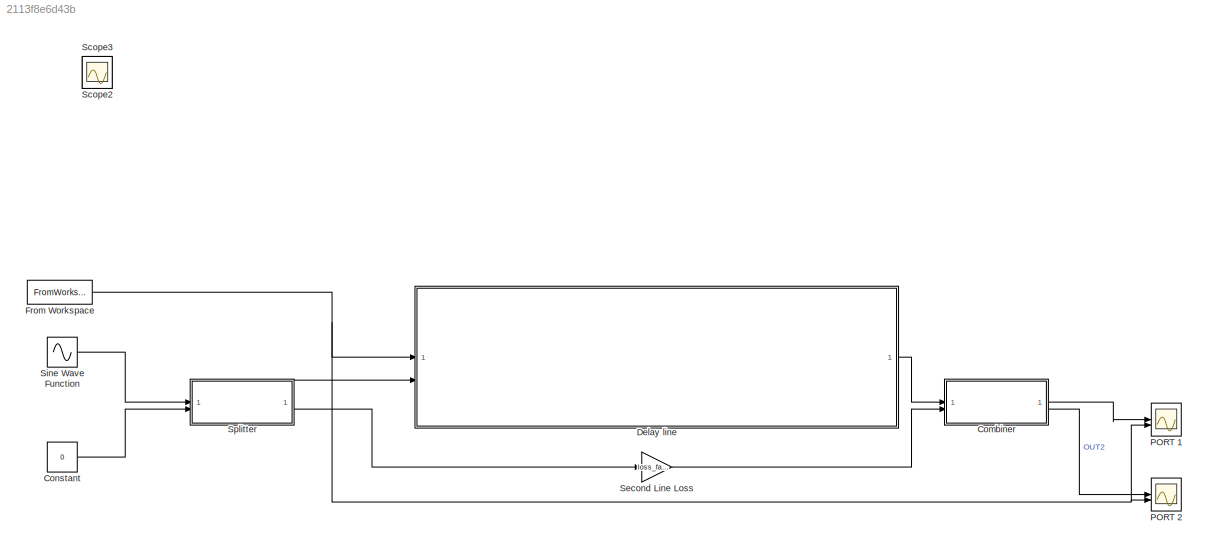
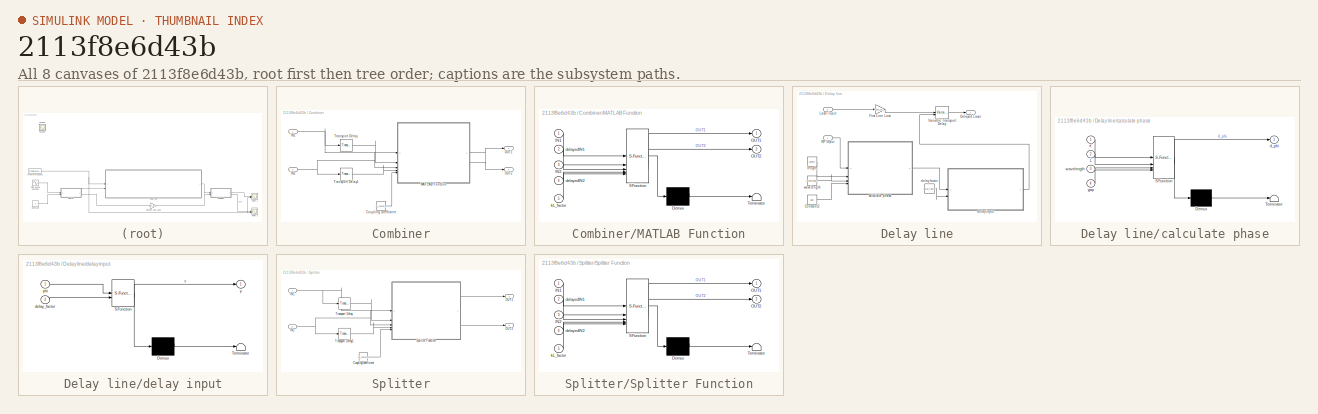
[diagram: thumbnail index - all 8 canvases of the model, root first then tree order]
MODEL slx_2113f8e6d43b
KIND model
CONFIG AbsTol = auto
CONFIG EnableMultiTasking = off
CONFIG FixedStep = sample_time
CONFIG MaxStep = auto
CONFIG MinStep = auto
CONFIG RelTol = 1e-3
CONFIG SampleTimeConstraint = Unconstrained
CONFIG SolverName = FixedStepAuto
CONFIG StartTime = 0
CONFIG StopTime = 6.4583e-05
WORKSPACE source: external: MAT-File  (data not in archive)
BLOCK [SubSystem] Combiner
  TreatAsAtomicUnit = on
BLOCK [Constant] Combiner/Coupling coefficient
  Value = kL_factor_c
BLOCK [Inport] Combiner/IN1
BLOCK [Inport] Combiner/IN2
  Port = 2
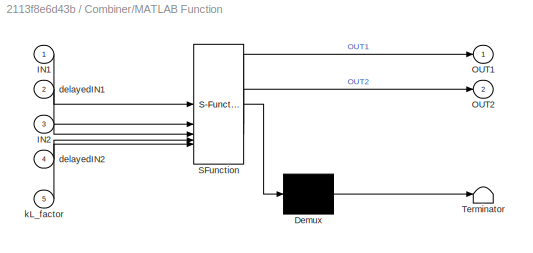
BLOCK [SubSystem] Combiner/MATLAB Function
  ErrorFcn = Stateflow.Translate.translate
  PermitHierarchicalResolution = ExplicitOnly
  SFBlockType = MATLAB Function
  TreatAsAtomicUnit = on
BLOCK [Demux] Combiner/MATLAB Function/ Demux 
  Outputs = 1
BLOCK [S-Function] Combiner/MATLAB Function/ SFunction 
  EnableBusSupport = on
  FunctionName = sf_sfun
  PortCounts = [5 3]
  SFcnIsStateOwnerBlock = off
  SFunctionDeploymentMode = off
  Tag = Stateflow S-Function 3
BLOCK [Terminator] Combiner/MATLAB Function/ Terminator 
BLOCK [Inport] Combiner/MATLAB Function/IN1
BLOCK [Inport] Combiner/MATLAB Function/IN2
  Port = 3
BLOCK [Outport] Combiner/MATLAB Function/OUT1
BLOCK [Outport] Combiner/MATLAB Function/OUT2
  Port = 2
BLOCK [Inport] Combiner/MATLAB Function/delayedIN1
  Port = 2
BLOCK [Inport] Combiner/MATLAB Function/delayedIN2
  Port = 4
BLOCK [Inport] Combiner/MATLAB Function/kL_factor
  Port = 5
BLOCK [Outport] Combiner/OUT1
BLOCK [Outport] Combiner/OUT2
  Port = 2
BLOCK [TransportDelay] Combiner/Transport Delay
  BufferSize = initial_buffer
  DelayTime = pi_half_delay
  TransDelayFeedthrough = on
BLOCK [TransportDelay] Combiner/Transport Delay1
  BufferSize = initial_buffer
  DelayTime = pi_half_delay
  TransDelayFeedthrough = on
BLOCK [Constant] Constant
  Value = 0
BLOCK [SubSystem] Delay line
BLOCK [Constant] Delay line/Constant2
  Value = gap
BLOCK [Outport] Delay line/Delayed Laser
BLOCK [Gain] Delay line/First Line Loss
  Gain = loss_factor_1
BLOCK [Inport] Delay line/Laser input
  Port = 2
BLOCK [Inport] Delay line/RF Input 
BLOCK [VariableTransportDelay] Delay line/Variable Transport Delay
  MaximumDelay = maximun_time_delay
  MaximumPoints = initial_buffer
  PadeOrder = 4
  TransDelayFeedthrough = on
  ZeroDelay = on
BLOCK [SubSystem] Delay line/calculate phase
  ErrorFcn = Stateflow.Translate.translate
  PermitHierarchicalResolution = ExplicitOnly
  SFBlockType = MATLAB Function
  TreatAsAtomicUnit = on
BLOCK [Demux] Delay line/calculate phase/ Demux 
  Outputs = 1
BLOCK [S-Function] Delay line/calculate phase/ SFunction 
  EnableBusSupport = on
  FunctionName = sf_sfun
  PortCounts = [4 2]
  SFcnIsStateOwnerBlock = off
  SFunctionDeploymentMode = off
  Tag = Stateflow S-Function 2
BLOCK [Terminator] Delay line/calculate phase/ Terminator 
BLOCK [Inport] Delay line/calculate phase/L
  Port = 2
BLOCK [Outport] Delay line/calculate phase/d_phi
BLOCK [Inport] Delay line/calculate phase/gap
  Port = 4
BLOCK [Inport] Delay line/calculate phase/rf
BLOCK [Inport] Delay line/calculate phase/wavelength
  Port = 3
BLOCK [Constant] Delay line/delay factor
  Value = delay_factor
BLOCK [SubSystem] Delay line/delay input
  ErrorFcn = Stateflow.Translate.translate
  PermitHierarchicalResolution = ExplicitOnly
  SFBlockType = MATLAB Function
  TreatAsAtomicUnit = on
BLOCK [Demux] Delay line/delay input/ Demux 
  Outputs = 1
BLOCK [S-Function] Delay line/delay input/ SFunction 
  EnableBusSupport = on
  FunctionName = sf_sfun
  PortCounts = [2 2]
  SFcnIsStateOwnerBlock = off
  SFunctionDeploymentMode = off
  Tag = Stateflow S-Function 4
BLOCK [Terminator] Delay line/delay input/ Terminator 
BLOCK [Inport] Delay line/delay input/delay_factor
  Port = 2
BLOCK [Inport] Delay line/delay input/phi
BLOCK [Outport] Delay line/delay input/y
BLOCK [Constant] Delay line/length
  Value = Length
BLOCK [Constant] Delay line/wavelength
  Value = wavelength
BLOCK [FromWorkspace] From Workspace
  VariableName = noise_ts
BLOCK [Scope] PORT 1
  Floating = off
  NumInputPorts = 2
  ScopeSpecificationString = Simulink.scopes.TimeScopeBlockCfg('CurrentConfiguration', extmgr.ConfigurationSet(extmgr.Configuration('Core','General UI',true),extmgr.Configuration('Core','Source UI',true),extmgr.Configuration('Sources','WiredSimulink',true,'DataLoggingVariableName','ScopeData2'),extmgr.Configuration('Visuals','Time Domain',true,'SerializedDisplays',{struct('MinYLimReal','-6.25','MaxYLimReal','6.25','YLabelReal...<+1811ch>
BLOCK [Scope] PORT 2
  Floating = off
  NumInputPorts = 2
  ScopeSpecificationString = Simulink.scopes.TimeScopeBlockCfg('CurrentConfiguration', extmgr.ConfigurationSet(extmgr.Configuration('Core','General UI',true),extmgr.Configuration('Core','Source UI',true),extmgr.Configuration('Sources','WiredSimulink',true,'DataLoggingVariableName','ScopeData1'),extmgr.Configuration('Visuals','Time Domain',true,'SerializedDisplays',{struct('MinYLimReal','-5.97651','MaxYLimReal','7.25922','YLab...<+1822ch>
BLOCK [Scope] Scope2
  Floating = off
  IOType = viewer
  NumInputPorts = 1
  ScopeSpecificationString = Simulink.scopes.TimeScopeBlockCfg('CurrentConfiguration', extmgr.ConfigurationSet(extmgr.Configuration('Core','General UI',true),extmgr.Configuration('Core','Source UI',true),extmgr.Configuration('Sources','WiredSimulink',true,'DataLoggingVariableName','ScopeData2'),extmgr.Configuration('Visuals','Time Domain',true,'SerializedDisplays',{struct('MinYLimReal','-0.25','MaxYLimReal','2.25','YLabelReal...<+1372ch>
BLOCK [Scope] Scope3
  Floating = off
  IOType = viewer
  NumInputPorts = 1
  ScopeSpecificationString = Simulink.scopes.TimeScopeBlockCfg('CurrentConfiguration', extmgr.ConfigurationSet(extmgr.Configuration('Core','General UI',true),extmgr.Configuration('Core','Source UI',true),extmgr.Configuration('Sources','WiredSimulink',true,'DataLoggingVariableName','ScopeData1'),extmgr.Configuration('Visuals','Time Domain',true,'SerializedDisplays',{struct('MinYLimReal','-0.88388','MaxYLimReal','0.88388','YLab...<+1434ch>
BLOCK [Gain] Second Line Loss
  Gain = loss_factor_2
BLOCK [Sin] Sine Wave Function
  Frequency = 2*pi*adj_frequency
  SampleTime = 0
BLOCK [SubSystem] Splitter
  TreatAsAtomicUnit = on
BLOCK [Constant] Splitter/Coupling coefficient
  Value = kL_factor_s
BLOCK [Inport] Splitter/IN1
BLOCK [Inport] Splitter/IN2
  Port = 2
BLOCK [Outport] Splitter/OUT1
BLOCK [Outport] Splitter/OUT2
  Port = 2
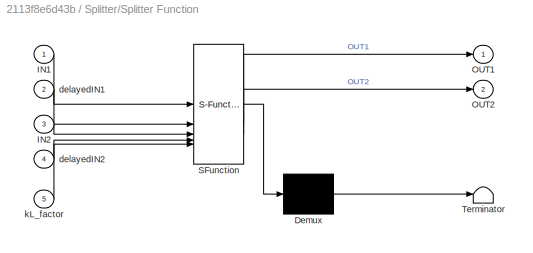
BLOCK [SubSystem] Splitter/Splitter Function
  ErrorFcn = Stateflow.Translate.translate
  PermitHierarchicalResolution = ExplicitOnly
  SFBlockType = MATLAB Function
  TreatAsAtomicUnit = on
BLOCK [Demux] Splitter/Splitter Function/ Demux 
  Outputs = 1
BLOCK [S-Function] Splitter/Splitter Function/ SFunction 
  EnableBusSupport = on
  FunctionName = sf_sfun
  PortCounts = [5 3]
  SFcnIsStateOwnerBlock = off
  SFunctionDeploymentMode = off
  Tag = Stateflow S-Function 1
BLOCK [Terminator] Splitter/Splitter Function/ Terminator 
BLOCK [Inport] Splitter/Splitter Function/IN1
BLOCK [Inport] Splitter/Splitter Function/IN2
  Port = 3
BLOCK [Outport] Splitter/Splitter Function/OUT1
BLOCK [Outport] Splitter/Splitter Function/OUT2
  Port = 2
BLOCK [Inport] Splitter/Splitter Function/delayedIN1
  Port = 2
BLOCK [Inport] Splitter/Splitter Function/delayedIN2
  Port = 4
BLOCK [Inport] Splitter/Splitter Function/kL_factor
  Port = 5
BLOCK [TransportDelay] Splitter/Transport Delay
  BufferSize = initial_buffer
  DelayTime = pi_half_delay
  TransDelayFeedthrough = on
BLOCK [TransportDelay] Splitter/Transport Delay1
  BufferSize = initial_buffer
  DelayTime = pi_half_delay
  TransDelayFeedthrough = on
LINE Combiner/Coupling coefficient:1 -> Combiner/MATLAB Function:5
NET Combiner/IN1:1 -> Combiner/MATLAB Function:1, Combiner/Transport Delay:1
NET Combiner/IN2:1 -> Combiner/MATLAB Function:3, Combiner/Transport Delay1:1
LINE Combiner/MATLAB Function:1 -> Combiner/OUT1:1
LINE Combiner/MATLAB Function:2 -> Combiner/OUT2:1
LINE Combiner/Transport Delay1:1 -> Combiner/MATLAB Function:4
LINE Combiner/Transport Delay:1 -> Combiner/MATLAB Function:2
LINE Combiner:1 -> PORT 1:1
LINE Combiner:2 -> PORT 2:1
LINE Constant:1 -> Splitter:2
LINE Delay line/Constant2:1 -> Delay line/calculate phase:4
LINE Delay line/First Line Loss:1 -> Delay line/Variable Transport Delay:1
LINE Delay line/Laser input:1 -> Delay line/First Line Loss:1
LINE Delay line/RF Input :1 -> Delay line/calculate phase:1
LINE Delay line/Variable Transport Delay:1 -> Delay line/Delayed Laser:1
LINE Delay line/calculate phase:1 -> Delay line/delay input:1
LINE Delay line/delay factor:1 -> Delay line/delay input:2
LINE Delay line/delay input:1 -> Delay line/Variable Transport Delay:2
LINE Delay line/length:1 -> Delay line/calculate phase:2
LINE Delay line/wavelength:1 -> Delay line/calculate phase:3
LINE Delay line:1 -> Combiner:1
NET From Workspace:1 -> Delay line:1, PORT 1:2, PORT 2:2
LINE Second Line Loss:1 -> Combiner:2
LINE Sine Wave Function:1 -> Splitter:1
LINE Splitter/Coupling coefficient:1 -> Splitter/Splitter Function:5
NET Splitter/IN1:1 -> Splitter/Splitter Function:1, Splitter/Transport Delay:1
NET Splitter/IN2:1 -> Splitter/Splitter Function:3, Splitter/Transport Delay1:1
LINE Splitter/Splitter Function:1 -> Splitter/OUT1:1
LINE Splitter/Splitter Function:2 -> Splitter/OUT2:1
LINE Splitter/Transport Delay1:1 -> Splitter/Splitter Function:4
LINE Splitter/Transport Delay:1 -> Splitter/Splitter Function:2
LINE Splitter:1 -> Delay line:2
LINE Splitter:2 -> Second Line Loss:1
note: NET lines group one-source signal fan-out (src -> all destinations, sorted); 1:1 wires keep LINE
CHART Splitter/Splitter Function states=1 transitions=1
  STATE_LABEL 'eML_blk_kernel()'
  STATE_LABEL 'SCRIPT:\nfunction [OUT1, OUT2] = splitter(IN1, delayedIN1, IN2, delayedIN2, kL_factor)\n\nOUT1 = cos(kL_factor)*IN1 + sin(kL_factor)*delayedIN2;\nOUT2 = sin(kL_factor)*delayedIN1 + cos(kL_factor)*IN2;\n'
CHART Delay line/calculate phase states=1 transitions=1
  STATE_LABEL 'eML_blk_kernel()'
  STATE_LABEL 'SCRIPT:\nfunction d_phi = fcn( rf, L, wavelength, gap ) %in2 is left untouched \n    %%\n    %Material : LiNbO3\n    r33 = 30.8e-12;\n    n0 = 2.2111;  \n    confinment_factor = 0.32;\n    %%\n    n=n0-(n0^3)*r33*confinment_factor*rf/(2*gap);\n    d_phi = ((2*pi)/wavelength)*(n0-n)*L;\nend'
CHART Combiner/MATLAB Function states=1 transitions=1
  STATE_LABEL 'eML_blk_kernel()'
  STATE_LABEL 'SCRIPT:\nfunction [OUT1, OUT2] = splitter(IN1, delayedIN1, IN2, delayedIN2, kL_factor)\n\nOUT1 = cos(kL_factor)*IN1 + sin(kL_factor)*delayedIN2;\nOUT2 = sin(kL_factor)*delayedIN1 + cos(kL_factor)*IN2;\n'
CHART Delay line/delay input states=1 transitions=1
  STATE_LABEL 'eML_blk_kernel()'
  STATE_LABEL 'SCRIPT:\nfunction y = fcn(phi, delay_factor)\ny = time_delay(phi, delay_factor);'
CHART  states=0 transitions=0
CHART  states=0 transitions=0
CHART  states=0 transitions=0
CHART  states=0 transitions=0
